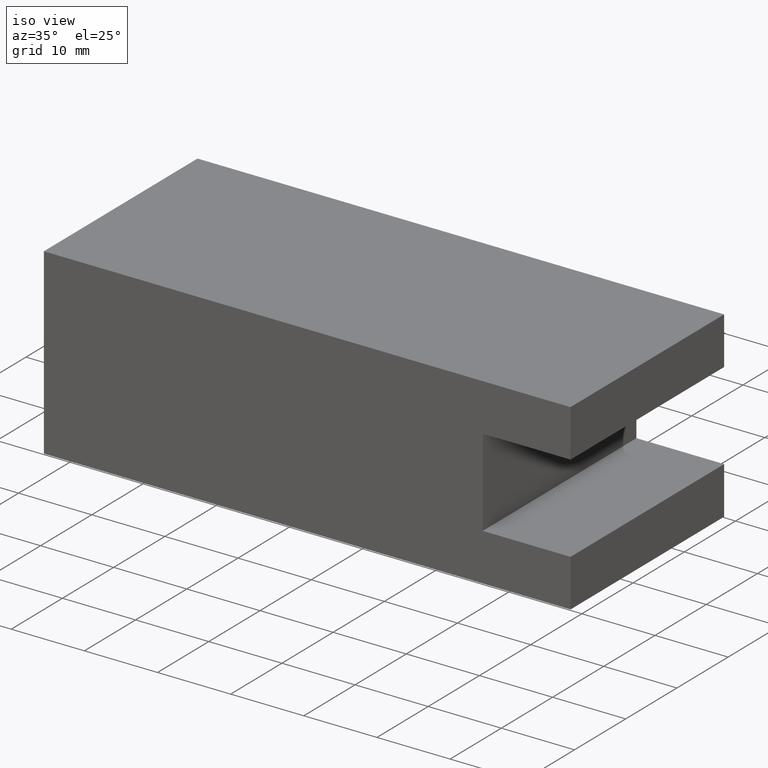
[diagram: clean part render]
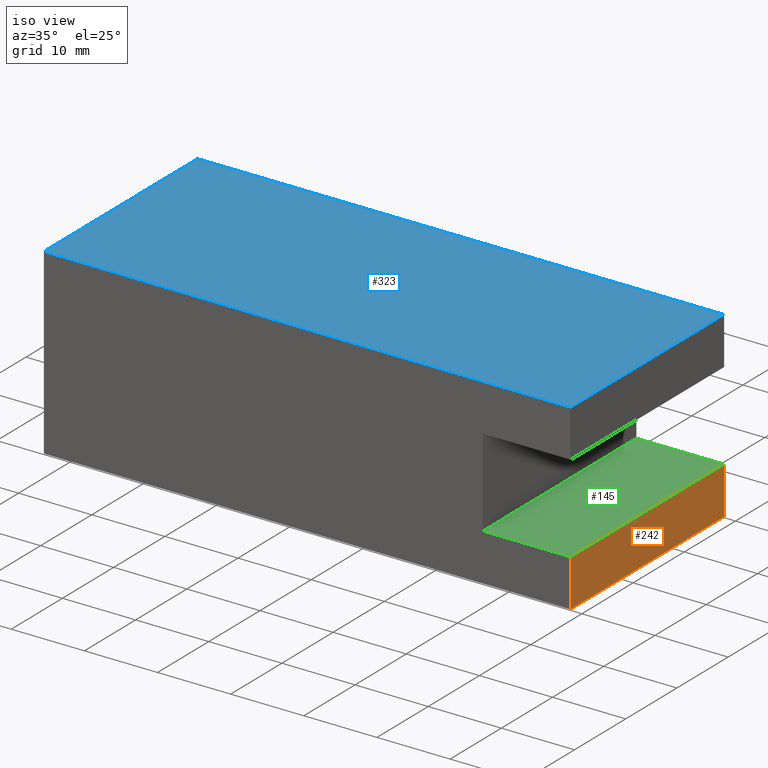
[diagram: same view with three faces highlighted in distinct colors, each labeled with its STEP entity id]
A machine part, iso view with three faces highlighted in distinct colors.
Their STEP definitions:

[orange] entity #242 — the highlighted planar face has unit normal (1, 0, 0).
#120=CARTESIAN_POINT('',(59.825283991875160,-11.961124341222462,6.499999999999994));
#121=VERTEX_POINT('',#120);
#128=CARTESIAN_POINT('',(59.825283991875153,18.038875658777538,6.499999999999994));
#129=VERTEX_POINT('',#128);
#130=CARTESIAN_POINT('',(59.825283991875153,18.038875658777538,6.499999999999994));
#131=DIRECTION('',(0.0,-1.0,0.0));
#132=VECTOR('',#131,30.0);
#133=LINE('',#130,#132);
#134=EDGE_CURVE('',#129,#121,#133,.T.);
#178=CARTESIAN_POINT('',(59.825283991875168,-11.961124341222460,0.0));
#179=VERTEX_POINT('',#178);
#186=CARTESIAN_POINT('',(59.825283991875168,-11.961124341222460,0.0));
#187=DIRECTION('',(0.0,0.0,1.0));
#188=VECTOR('',#187,6.499999999999994);
#189=LINE('',#186,#188);
#190=EDGE_CURVE('',#179,#121,#189,.T.);
#219=CARTESIAN_POINT('',(59.825283991875160,18.038875658777538,0.0));
#220=DIRECTION('',(1.0,0.0,0.0));
#221=DIRECTION('',(0.0,0.0,-1.0));
#222=AXIS2_PLACEMENT_3D('',#219,#220,#221);
#223=PLANE('',#222);
#224=ORIENTED_EDGE('',*,*,#134,.T.);
#225=ORIENTED_EDGE('',*,*,#190,.F.);
#226=CARTESIAN_POINT('',(59.825283991875160,18.038875658777538,0.0));
#227=VERTEX_POINT('',#226);
#228=CARTESIAN_POINT('',(59.825283991875168,-11.961124341222460,0.0));
#229=DIRECTION('',(0.0,1.0,0.0));
#230=VECTOR('',#229,30.0);
#231=LINE('',#228,#230);
#232=EDGE_CURVE('',#179,#227,#231,.T.);
#233=ORIENTED_EDGE('',*,*,#232,.T.);
#234=CARTESIAN_POINT('',(59.825283991875160,18.038875658777538,0.0));
#235=DIRECTION('',(0.0,0.0,1.0));
#236=VECTOR('',#235,6.499999999999994);
#237=LINE('',#234,#236);
#238=EDGE_CURVE('',#227,#129,#237,.T.);
#239=ORIENTED_EDGE('',*,*,#238,.T.);
#240=EDGE_LOOP('',(#224,#225,#233,#239));
#241=FACE_OUTER_BOUND('',#240,.T.);
#242=ADVANCED_FACE('',(#241),#223,.T.);

[blue] entity #323 — the highlighted planar face has unit normal (0, 0, 1).
#154=CARTESIAN_POINT('',(59.825283991875168,-11.961124341222460,25.0));
#155=VERTEX_POINT('',#154);
#162=CARTESIAN_POINT('',(-12.174716008124847,-11.961124341222476,25.0));
#163=VERTEX_POINT('',#162);
#164=CARTESIAN_POINT('',(59.825283991875168,-11.961124341222460,25.0));
#165=DIRECTION('',(-1.0,0.0,0.0));
#166=VECTOR('',#165,72.000000000000014);
#167=LINE('',#164,#166);
#168=EDGE_CURVE('',#155,#163,#167,.T.);
#201=CARTESIAN_POINT('',(59.825283991875160,18.038875658777538,25.0));
#202=VERTEX_POINT('',#201);
#209=CARTESIAN_POINT('',(59.825283991875160,18.038875658777538,25.0));
#210=DIRECTION('',(0.0,-1.0,0.0));
#211=VECTOR('',#210,30.0);
#212=LINE('',#209,#211);
#213=EDGE_CURVE('',#202,#155,#212,.T.);
#248=CARTESIAN_POINT('',(-12.174716008124847,18.038875658777524,25.0));
#249=VERTEX_POINT('',#248);
#250=CARTESIAN_POINT('',(-12.174716008124847,-11.961124341222476,25.0));
#251=DIRECTION('',(0.0,1.0,0.0));
#252=VECTOR('',#251,30.0);
#253=LINE('',#250,#252);
#254=EDGE_CURVE('',#163,#249,#253,.T.);
#288=CARTESIAN_POINT('',(-12.174716008124847,18.038875658777524,25.0));
#289=DIRECTION('',(1.0,0.0,0.0));
#290=VECTOR('',#289,72.0);
#291=LINE('',#288,#290);
#292=EDGE_CURVE('',#249,#202,#291,.T.);
#312=CARTESIAN_POINT('',(23.825283991875160,3.038875658777529,25.0));
#313=DIRECTION('',(0.0,0.0,1.0));
#314=DIRECTION('',(1.0,0.0,0.0));
#315=AXIS2_PLACEMENT_3D('',#312,#313,#314);
#316=PLANE('',#315);
#317=ORIENTED_EDGE('',*,*,#213,.F.);
#318=ORIENTED_EDGE('',*,*,#292,.F.);
#319=ORIENTED_EDGE('',*,*,#254,.F.);
#320=ORIENTED_EDGE('',*,*,#168,.F.);
#321=EDGE_LOOP('',(#317,#318,#319,#320));
#322=FACE_OUTER_BOUND('',#321,.T.);
#323=ADVANCED_FACE('',(#322),#316,.T.);

[green] entity #145 — the highlighted planar face has unit normal (0, 0, -1).
#49=CARTESIAN_POINT('',(47.825283991875168,-11.961124341222465,6.499999999999995));
#50=VERTEX_POINT('',#49);
#59=CARTESIAN_POINT('',(47.825283991875160,18.038875658777535,6.499999999999995));
#60=VERTEX_POINT('',#59);
#61=CARTESIAN_POINT('',(47.825283991875160,18.038875658777535,6.499999999999995));
#62=DIRECTION('',(0.0,-1.0,0.0));
#63=VECTOR('',#62,30.0);
#64=LINE('',#61,#63);
#65=EDGE_CURVE('',#60,#50,#64,.T.);
#115=CARTESIAN_POINT('',(59.825283991875153,18.038875658777538,6.499999999999994));
#116=DIRECTION('',(0.0,0.0,-1.0));
#117=DIRECTION('',(-1.0,0.0,0.0));
#118=AXIS2_PLACEMENT_3D('',#115,#116,#117);
#119=PLANE('',#118);
#120=CARTESIAN_POINT('',(59.825283991875160,-11.961124341222462,6.499999999999994));
#121=VERTEX_POINT('',#120);
#122=CARTESIAN_POINT('',(59.825283991875160,-11.961124341222462,6.499999999999994));
#123=DIRECTION('',(-1.0,0.0,0.0));
#124=VECTOR('',#123,11.999999999999993);
#125=LINE('',#122,#124);
#126=EDGE_CURVE('',#121,#50,#125,.T.);
#127=ORIENTED_EDGE('',*,*,#126,.F.);
#128=CARTESIAN_POINT('',(59.825283991875153,18.038875658777538,6.499999999999994));
#129=VERTEX_POINT('',#128);
#130=CARTESIAN_POINT('',(59.825283991875153,18.038875658777538,6.499999999999994));
#131=DIRECTION('',(0.0,-1.0,0.0));
#132=VECTOR('',#131,30.0);
#133=LINE('',#130,#132);
#134=EDGE_CURVE('',#129,#121,#133,.T.);
#135=ORIENTED_EDGE('',*,*,#134,.F.);
#136=CARTESIAN_POINT('',(47.825283991875160,18.038875658777535,6.499999999999995));
#137=DIRECTION('',(1.0,0.0,0.0));
#138=VECTOR('',#137,11.999999999999993);
#139=LINE('',#136,#138);
#140=EDGE_CURVE('',#60,#129,#139,.T.);
#141=ORIENTED_EDGE('',*,*,#140,.F.);
#142=ORIENTED_EDGE('',*,*,#65,.T.);
#143=EDGE_LOOP('',(#127,#135,#141,#142));
#144=FACE_OUTER_BOUND('',#143,.T.);
#145=ADVANCED_FACE('',(#144),#119,.F.);